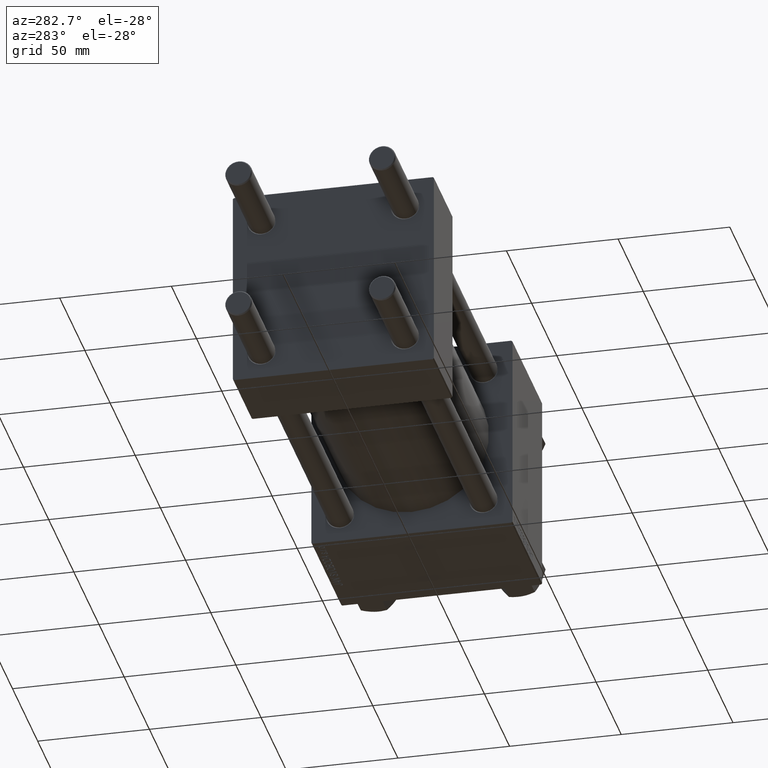
[diagram: clean part render]
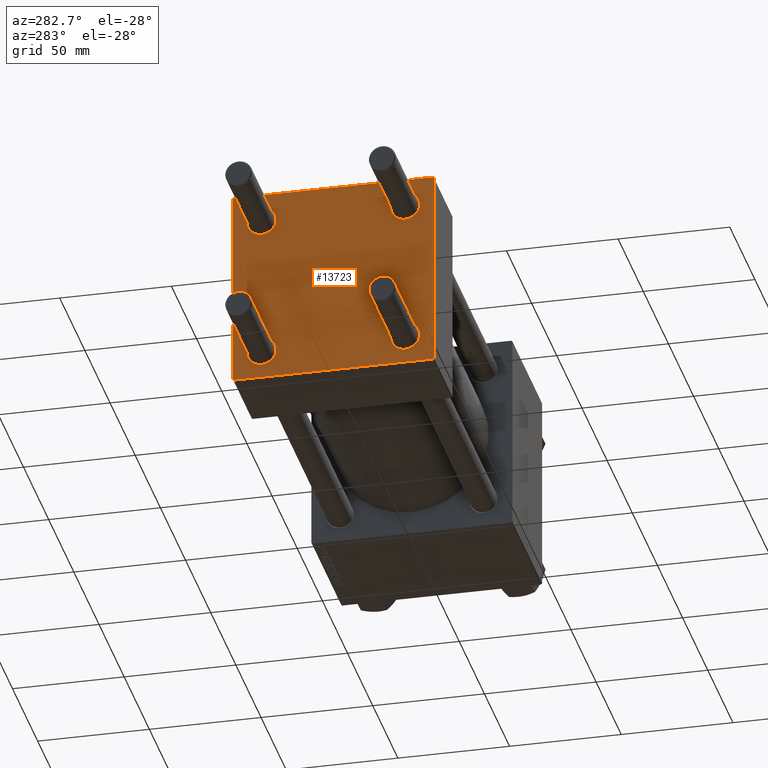
[diagram: same view with one face highlighted and labeled with its STEP entity id]
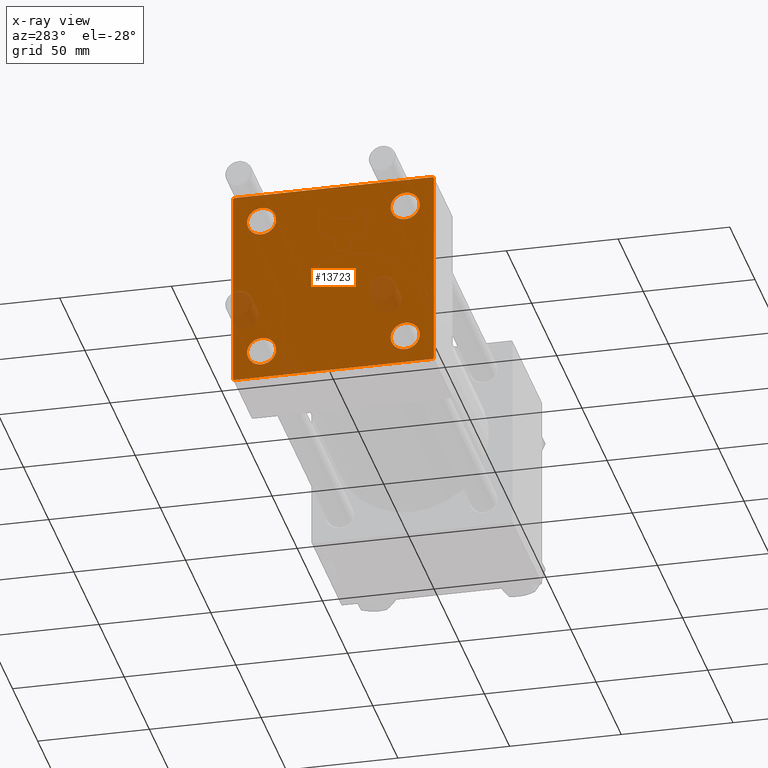
[diagram: x-ray of the same camera — body ghosted, the highlighted face saturated]
A machine part, auxiliary view. The second image highlights one B-rep face of the part: STEP entity #13723.
The next image is the same camera in x-ray: the body ghosted, the highlighted face saturated — about 5% of this face is hidden behind the body in this view.
In plain terms, the highlighted planar face has unit normal (-1, 0, 0).
Its self-contained STEP definition (entity closure, byte-faithful):
#30 = VERTEX_POINT ( 'NONE', #26727 ) ;
#463 = ORIENTED_EDGE ( 'NONE', *, *, #737, .T. ) ;
#701 = DIRECTION ( 'NONE',  ( 1.000000000000000000, -0.000000000000000000, 0.000000000000000000 ) ) ;
#737 = EDGE_CURVE ( 'NONE', #49929, #42780, #46007, .T. ) ;
#773 = ORIENTED_EDGE ( 'NONE', *, *, #32266, .T. ) ;
#1050 = CIRCLE ( 'NONE', #1848, 6.500000000000019540 ) ;
#1685 = DIRECTION ( 'NONE',  ( -0.000000000000000000, 0.7071067811865425767, 0.7071067811865524577 ) ) ;
#1848 = AXIS2_PLACEMENT_3D ( 'NONE', #32745, #32491, #33227 ) ;
#2044 = DIRECTION ( 'NONE',  ( 0.000000000000000000, 0.000000000000000000, 1.000000000000000000 ) ) ;
#2386 = EDGE_LOOP ( 'NONE', ( #13513, #28313 ) ) ;
#2711 = EDGE_CURVE ( 'NONE', #45082, #30413, #11391, .T. ) ;
#3054 = DIRECTION ( 'NONE',  ( 1.000000000000000000, -0.000000000000000000, 0.000000000000000000 ) ) ;
#3747 = AXIS2_PLACEMENT_3D ( 'NONE', #16690, #5559, #2044 ) ;
#4182 = AXIS2_PLACEMENT_3D ( 'NONE', #23931, #31752, #5222 ) ;
#4297 = CARTESIAN_POINT ( 'NONE',  ( 0.000000000000000000, 32.14999999999999147, -38.64999999999998437 ) ) ;
#4526 = CIRCLE ( 'NONE', #3747, 6.499999999999977796 ) ;
#4933 = EDGE_CURVE ( 'NONE', #42780, #49929, #25163, .T. ) ;
#5222 = DIRECTION ( 'NONE',  ( 0.000000000000000000, 0.000000000000000000, 1.000000000000000000 ) ) ;
#5559 = DIRECTION ( 'NONE',  ( 1.000000000000000000, -0.000000000000000000, 0.000000000000000000 ) ) ;
#5694 = LINE ( 'NONE', #28687, #22141 ) ;
#5783 = ORIENTED_EDGE ( 'NONE', *, *, #10300, .T. ) ;
#6480 = ORIENTED_EDGE ( 'NONE', *, *, #19834, .T. ) ;
#6671 = VECTOR ( 'NONE', #18841, 1000.000000000000000 ) ;
#7010 = FACE_BOUND ( 'NONE', #48850, .T. ) ;
#7452 = EDGE_CURVE ( 'NONE', #48699, #30, #1050, .T. ) ;
#7492 = VERTEX_POINT ( 'NONE', #36538 ) ;
#7875 = EDGE_CURVE ( 'NONE', #27876, #7492, #31124, .T. ) ;
#8864 = EDGE_CURVE ( 'NONE', #32717, #8908, #38166, .T. ) ;
#8908 = VERTEX_POINT ( 'NONE', #23765 ) ;
#9262 = CARTESIAN_POINT ( 'NONE',  ( 0.000000000000000000, 32.14999999999999147, -25.65000000000002700 ) ) ;
#10300 = EDGE_CURVE ( 'NONE', #11410, #13613, #5694, .T. ) ;
#10722 = ORIENTED_EDGE ( 'NONE', *, *, #8864, .T. ) ;
#10971 = DIRECTION ( 'NONE',  ( 0.000000000000000000, 0.000000000000000000, 1.000000000000000000 ) ) ;
#11279 = LINE ( 'NONE', #39038, #42579 ) ;
#11302 = FACE_BOUND ( 'NONE', #21085, .T. ) ;
#11391 = CIRCLE ( 'NONE', #20263, 6.499999999999977796 ) ;
#11410 = VERTEX_POINT ( 'NONE', #47836 ) ;
#11550 = FACE_BOUND ( 'NONE', #2386, .T. ) ;
#11774 = DIRECTION ( 'NONE',  ( -0.000000000000000000, -0.7071067811865474617, -0.7071067811865474617 ) ) ;
#11797 = FACE_OUTER_BOUND ( 'NONE', #35153, .T. ) ;
#11865 = CIRCLE ( 'NONE', #37684, 6.499999999999977796 ) ;
#11925 = DIRECTION ( 'NONE',  ( 0.000000000000000000, 0.000000000000000000, -1.000000000000000000 ) ) ;
#12906 = AXIS2_PLACEMENT_3D ( 'NONE', #36987, #14484, #10971 ) ;
#12932 = CARTESIAN_POINT ( 'NONE',  ( 0.000000000000000000, 44.49999999999998579, -44.99999999999998579 ) ) ;
#13366 = CARTESIAN_POINT ( 'NONE',  ( 0.000000000000000000, 44.99999999999998579, 45.00000000000001421 ) ) ;
#13513 = ORIENTED_EDGE ( 'NONE', *, *, #41495, .T. ) ;
#13613 = VERTEX_POINT ( 'NONE', #48949 ) ;
#13723 = ADVANCED_FACE ( 'NONE', ( #11550, #11302, #31246, #7010, #11797 ), #41618, .T. ) ;
#13749 = DIRECTION ( 'NONE',  ( 0.000000000000000000, 0.7071067811865474617, -0.7071067811865474617 ) ) ;
#13982 = VERTEX_POINT ( 'NONE', #26641 ) ;
#14376 = DIRECTION ( 'NONE',  ( 1.000000000000000000, -0.000000000000000000, 0.000000000000000000 ) ) ;
#14411 = CARTESIAN_POINT ( 'NONE',  ( 0.000000000000000000, -44.49999999999995737, -45.00000000000000000 ) ) ;
#14429 = DIRECTION ( 'NONE',  ( 0.000000000000000000, -0.7071067811865474617, 0.7071067811865474617 ) ) ;
#14484 = DIRECTION ( 'NONE',  ( 1.000000000000000000, -0.000000000000000000, 0.000000000000000000 ) ) ;
#14683 = DIRECTION ( 'NONE',  ( 0.000000000000000000, -1.000000000000000000, -1.541976423090495387E-16 ) ) ;
#14843 = AXIS2_PLACEMENT_3D ( 'NONE', #18886, #22428, #49449 ) ;
#14889 = DIRECTION ( 'NONE',  ( 0.000000000000000000, 7.709882115452476934E-17, -1.000000000000000000 ) ) ;
#16596 = EDGE_CURVE ( 'NONE', #46734, #26754, #38314, .T. ) ;
#16690 = CARTESIAN_POINT ( 'NONE',  ( 0.000000000000000000, 32.14999999999999147, -32.15000000000000568 ) ) ;
#18150 = CIRCLE ( 'NONE', #25389, 6.500000000000019540 ) ;
#18841 = DIRECTION ( 'NONE',  ( 0.000000000000000000, -1.000000000000000000, -1.541976423090495633E-16 ) ) ;
#18886 = CARTESIAN_POINT ( 'NONE',  ( 0.000000000000000000, 0.000000000000000000, 0.000000000000000000 ) ) ;
#19232 = CARTESIAN_POINT ( 'NONE',  ( 0.000000000000000000, -44.74999999999998579, -44.74999999999998579 ) ) ;
#19447 = DIRECTION ( 'NONE',  ( 0.000000000000000000, 0.000000000000000000, 1.000000000000000000 ) ) ;
#19479 = ORIENTED_EDGE ( 'NONE', *, *, #16596, .T. ) ;
#19542 = EDGE_CURVE ( 'NONE', #13982, #13613, #22530, .T. ) ;
#19834 = EDGE_CURVE ( 'NONE', #30413, #45082, #4526, .T. ) ;
#20263 = AXIS2_PLACEMENT_3D ( 'NONE', #29977, #30234, #34279 ) ;
#21085 = EDGE_LOOP ( 'NONE', ( #19479, #43006 ) ) ;
#22035 = ORIENTED_EDGE ( 'NONE', *, *, #4933, .T. ) ;
#22127 = CARTESIAN_POINT ( 'NONE',  ( 0.000000000000000000, -32.14999999999997726, 25.64999999999999147 ) ) ;
#22141 = VECTOR ( 'NONE', #1685, 1000.000000000000114 ) ;
#22428 = DIRECTION ( 'NONE',  ( -1.000000000000000000, 0.000000000000000000, -0.000000000000000000 ) ) ;
#22507 = ORIENTED_EDGE ( 'NONE', *, *, #23124, .T. ) ;
#22530 = LINE ( 'NONE', #48803, #31177 ) ;
#23124 = EDGE_CURVE ( 'NONE', #7492, #25694, #11279, .T. ) ;
#23765 = CARTESIAN_POINT ( 'NONE',  ( 0.000000000000000000, -45.00000000000000000, -44.49999999999995737 ) ) ;
#23931 = CARTESIAN_POINT ( 'NONE',  ( 0.000000000000000000, 32.14999999999999147, 32.15000000000000568 ) ) ;
#23966 = ORIENTED_EDGE ( 'NONE', *, *, #24748, .F. ) ;
#24240 = ORIENTED_EDGE ( 'NONE', *, *, #7875, .T. ) ;
#24748 = EDGE_CURVE ( 'NONE', #11410, #8908, #37877, .T. ) ;
#25163 = CIRCLE ( 'NONE', #4182, 6.499999999999977796 ) ;
#25389 = AXIS2_PLACEMENT_3D ( 'NONE', #38392, #3054, #19447 ) ;
#25694 = VERTEX_POINT ( 'NONE', #12932 ) ;
#26641 = CARTESIAN_POINT ( 'NONE',  ( 0.000000000000000000, 44.49999999999998579, 45.00000000000001421 ) ) ;
#26727 = CARTESIAN_POINT ( 'NONE',  ( 0.000000000000000000, -32.14999999999997726, 38.65000000000003411 ) ) ;
#26754 = VERTEX_POINT ( 'NONE', #42143 ) ;
#27479 = CARTESIAN_POINT ( 'NONE',  ( 0.000000000000000000, 44.74999999999999289, 44.74999999999999289 ) ) ;
#27656 = CARTESIAN_POINT ( 'NONE',  ( 0.000000000000000000, 44.99999999999998579, -44.99999999999998579 ) ) ;
#27876 = VERTEX_POINT ( 'NONE', #43617 ) ;
#28313 = ORIENTED_EDGE ( 'NONE', *, *, #7452, .T. ) ;
#28687 = CARTESIAN_POINT ( 'NONE',  ( -0.000000000000000000, -44.75000000000029843, 44.74999999999967315 ) ) ;
#29977 = CARTESIAN_POINT ( 'NONE',  ( 0.000000000000000000, 32.14999999999999147, -32.15000000000000568 ) ) ;
#30234 = DIRECTION ( 'NONE',  ( 1.000000000000000000, -0.000000000000000000, 0.000000000000000000 ) ) ;
#30413 = VERTEX_POINT ( 'NONE', #9262 ) ;
#31124 = LINE ( 'NONE', #13366, #34135 ) ;
#31177 = VECTOR ( 'NONE', #14683, 1000.000000000000000 ) ;
#31246 = FACE_BOUND ( 'NONE', #34948, .T. ) ;
#31752 = DIRECTION ( 'NONE',  ( 1.000000000000000000, -0.000000000000000000, 0.000000000000000000 ) ) ;
#31996 = DIRECTION ( 'NONE',  ( 0.000000000000000000, 0.000000000000000000, 1.000000000000000000 ) ) ;
#32266 = EDGE_CURVE ( 'NONE', #25694, #32717, #38775, .T. ) ;
#32491 = DIRECTION ( 'NONE',  ( 1.000000000000000000, -0.000000000000000000, 0.000000000000000000 ) ) ;
#32717 = VERTEX_POINT ( 'NONE', #14411 ) ;
#32745 = CARTESIAN_POINT ( 'NONE',  ( 0.000000000000000000, -32.14999999999997726, 32.15000000000001279 ) ) ;
#33227 = DIRECTION ( 'NONE',  ( 0.000000000000000000, 0.000000000000000000, 1.000000000000000000 ) ) ;
#33436 = VECTOR ( 'NONE', #13749, 1000.000000000000114 ) ;
#34135 = VECTOR ( 'NONE', #11925, 1000.000000000000000 ) ;
#34279 = DIRECTION ( 'NONE',  ( 0.000000000000000000, 0.000000000000000000, 1.000000000000000000 ) ) ;
#34948 = EDGE_LOOP ( 'NONE', ( #6480, #39462 ) ) ;
#35153 = EDGE_LOOP ( 'NONE', ( #24240, #22507, #773, #10722, #23966, #5783, #49954, #44657 ) ) ;
#35907 = AXIS2_PLACEMENT_3D ( 'NONE', #45453, #14376, #48258 ) ;
#36255 = VECTOR ( 'NONE', #14889, 1000.000000000000000 ) ;
#36507 = LINE ( 'NONE', #27479, #33436 ) ;
#36538 = CARTESIAN_POINT ( 'NONE',  ( 0.000000000000000000, 44.99999999999998579, -44.49999999999995737 ) ) ;
#36987 = CARTESIAN_POINT ( 'NONE',  ( 0.000000000000000000, 32.14999999999999147, 32.15000000000000568 ) ) ;
#37317 = EDGE_CURVE ( 'NONE', #13982, #27876, #36507, .T. ) ;
#37684 = AXIS2_PLACEMENT_3D ( 'NONE', #39323, #701, #31996 ) ;
#37877 = LINE ( 'NONE', #49253, #36255 ) ;
#38166 = LINE ( 'NONE', #19232, #43054 ) ;
#38314 = CIRCLE ( 'NONE', #35907, 6.499999999999977796 ) ;
#38392 = CARTESIAN_POINT ( 'NONE',  ( 0.000000000000000000, -32.14999999999997726, 32.15000000000001279 ) ) ;
#38534 = CARTESIAN_POINT ( 'NONE',  ( 0.000000000000000000, 32.14999999999999147, 25.65000000000002700 ) ) ;
#38775 = LINE ( 'NONE', #27656, #6671 ) ;
#39038 = CARTESIAN_POINT ( 'NONE',  ( 0.000000000000000000, 44.74999999999998579, -44.74999999999998579 ) ) ;
#39323 = CARTESIAN_POINT ( 'NONE',  ( 0.000000000000000000, -32.14999999999997726, -32.15000000000001279 ) ) ;
#39462 = ORIENTED_EDGE ( 'NONE', *, *, #2711, .T. ) ;
#41495 = EDGE_CURVE ( 'NONE', #30, #48699, #18150, .T. ) ;
#41618 = PLANE ( 'NONE',  #14843 ) ;
#42143 = CARTESIAN_POINT ( 'NONE',  ( 0.000000000000000000, -32.14999999999997726, -38.64999999999999147 ) ) ;
#42579 = VECTOR ( 'NONE', #11774, 1000.000000000000114 ) ;
#42780 = VERTEX_POINT ( 'NONE', #38534 ) ;
#43006 = ORIENTED_EDGE ( 'NONE', *, *, #47613, .T. ) ;
#43054 = VECTOR ( 'NONE', #14429, 1000.000000000000114 ) ;
#43617 = CARTESIAN_POINT ( 'NONE',  ( 0.000000000000000000, 44.99999999999998579, 44.50000000000001421 ) ) ;
#44657 = ORIENTED_EDGE ( 'NONE', *, *, #37317, .T. ) ;
#44781 = CARTESIAN_POINT ( 'NONE',  ( 0.000000000000000000, -32.14999999999997726, -25.65000000000003411 ) ) ;
#45082 = VERTEX_POINT ( 'NONE', #4297 ) ;
#45453 = CARTESIAN_POINT ( 'NONE',  ( 0.000000000000000000, -32.14999999999997726, -32.15000000000001279 ) ) ;
#45474 = CARTESIAN_POINT ( 'NONE',  ( 0.000000000000000000, 32.14999999999999147, 38.64999999999999147 ) ) ;
#46007 = CIRCLE ( 'NONE', #12906, 6.499999999999977796 ) ;
#46734 = VERTEX_POINT ( 'NONE', #44781 ) ;
#47613 = EDGE_CURVE ( 'NONE', #26754, #46734, #11865, .T. ) ;
#47836 = CARTESIAN_POINT ( 'NONE',  ( 0.000000000000000000, -45.00000000000000711, 44.49999999999997158 ) ) ;
#48258 = DIRECTION ( 'NONE',  ( 0.000000000000000000, 0.000000000000000000, 1.000000000000000000 ) ) ;
#48699 = VERTEX_POINT ( 'NONE', #22127 ) ;
#48803 = CARTESIAN_POINT ( 'NONE',  ( 0.000000000000000000, 44.99999999999998579, 45.00000000000001421 ) ) ;
#48850 = EDGE_LOOP ( 'NONE', ( #463, #22035 ) ) ;
#48949 = CARTESIAN_POINT ( 'NONE',  ( 0.000000000000000000, -44.49999999999995737, 45.00000000000000000 ) ) ;
#49253 = CARTESIAN_POINT ( 'NONE',  ( 0.000000000000000000, -45.00000000000000711, 45.00000000000000000 ) ) ;
#49449 = DIRECTION ( 'NONE',  ( -0.000000000000000000, 0.000000000000000000, 1.000000000000000000 ) ) ;
#49929 = VERTEX_POINT ( 'NONE', #45474 ) ;
#49954 = ORIENTED_EDGE ( 'NONE', *, *, #19542, .F. ) ;